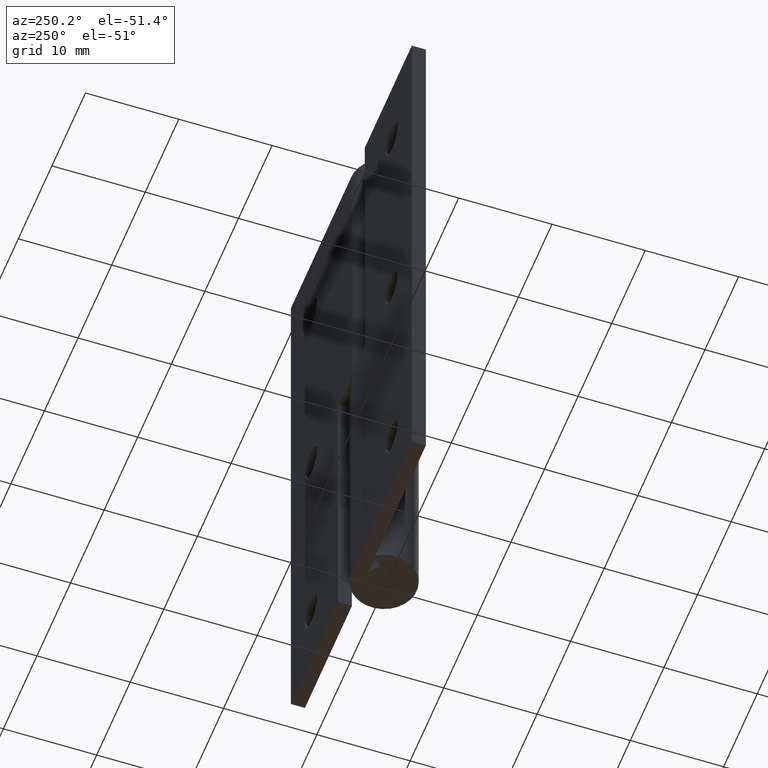
[diagram: clean part render]
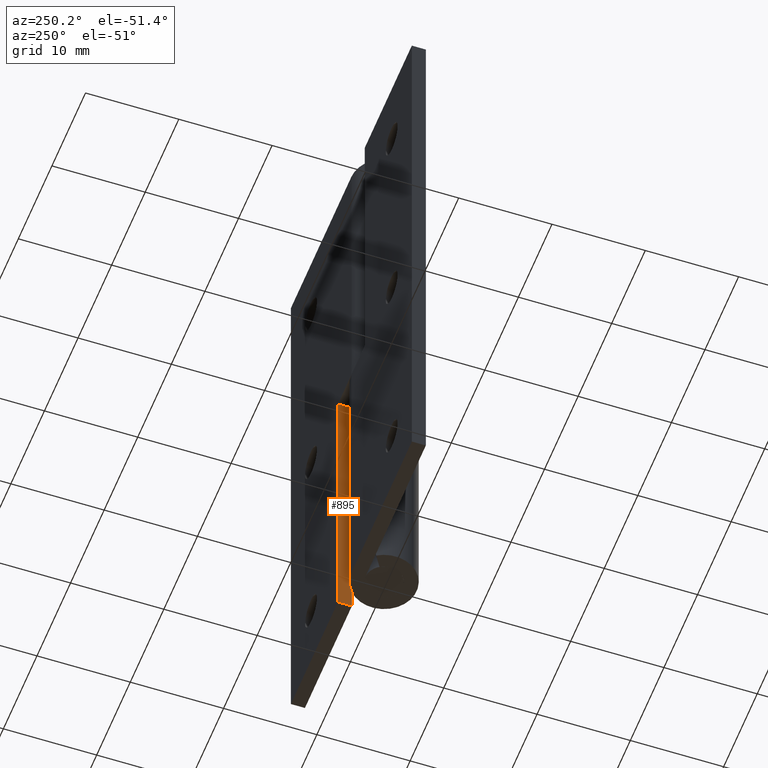
[diagram: same view with one face highlighted and labeled with its STEP entity id]
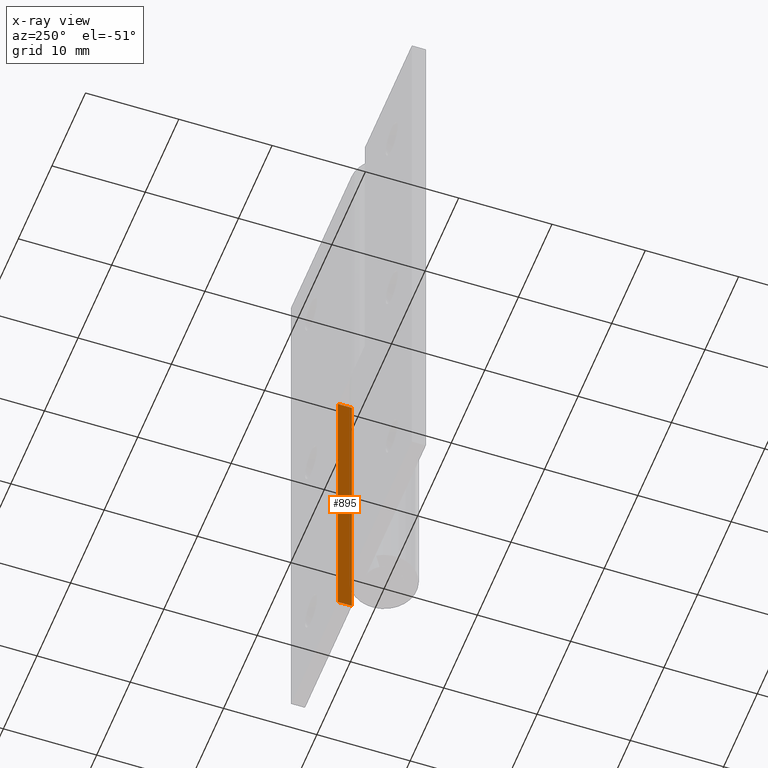
[diagram: x-ray of the same camera — body ghosted, the highlighted face saturated]
A machine part, auxiliary view. The second image highlights one B-rep face of the part: STEP entity #895.
The next image is the same camera in x-ray: the body ghosted, the highlighted face saturated — about 0% of this face is hidden behind the body in this view.
In plain terms, the highlighted face is a freeform B-spline surface patch.
Its self-contained STEP definition (entity closure, byte-faithful):
#860=CARTESIAN_POINT('',(4.0,1.925075002907294,-1.598400337577772));
#861=CARTESIAN_POINT('',(4.0,1.925075002907294,33.598409195884770));
#862=CARTESIAN_POINT('',(4.0,3.574925037325792,-1.598400337577772));
#863=CARTESIAN_POINT('',(4.0,3.574925037325792,33.598409195884770));
#864=B_SPLINE_SURFACE_WITH_KNOTS('',1,1,((#860,#862),(#861,#863)),.UNSPECIFIED.,.F.,.F.,.U.,(2,2),(2,2),(0.0,35.196809533462542),(0.041708334948495,0.958291687403247),.UNSPECIFIED.);
#865=CARTESIAN_POINT('',(4.0,2.0,32.000007999999902));
#866=VERTEX_POINT('',#865);
#867=CARTESIAN_POINT('',(4.0,2.0,0.0));
#868=VERTEX_POINT('',#867);
#869=CARTESIAN_POINT('',(4.0,2.0,32.000007999999902));
#870=CARTESIAN_POINT('',(4.0,2.0,0.0));
#871=QUASI_UNIFORM_CURVE('',1,(#869,#870),.UNSPECIFIED.,.F.,.U.);
#872=EDGE_CURVE('',#866,#868,#871,.T.);
#873=ORIENTED_EDGE('',*,*,#872,.F.);
#874=CARTESIAN_POINT('',(4.0,3.499999999999950,32.000007999999902));
#875=VERTEX_POINT('',#874);
#876=CARTESIAN_POINT('',(4.0,3.499999999999950,32.000007999999902));
#877=CARTESIAN_POINT('',(4.0,2.0,32.000007999999902));
#878=QUASI_UNIFORM_CURVE('',1,(#876,#877),.UNSPECIFIED.,.F.,.U.);
#879=EDGE_CURVE('',#875,#866,#878,.T.);
#880=ORIENTED_EDGE('',*,*,#879,.F.);
#881=CARTESIAN_POINT('',(4.0,3.499999999999950,0.0));
#882=VERTEX_POINT('',#881);
#883=CARTESIAN_POINT('',(4.0,3.499999999999950,32.000007999999902));
#884=CARTESIAN_POINT('',(4.0,3.499999999999950,0.0));
#885=QUASI_UNIFORM_CURVE('',1,(#883,#884),.UNSPECIFIED.,.F.,.U.);
#886=EDGE_CURVE('',#875,#882,#885,.T.);
#887=ORIENTED_EDGE('',*,*,#886,.T.);
#888=CARTESIAN_POINT('',(4.0,3.499999999999950,0.0));
#889=CARTESIAN_POINT('',(4.0,2.0,0.0));
#890=QUASI_UNIFORM_CURVE('',1,(#888,#889),.UNSPECIFIED.,.F.,.U.);
#891=EDGE_CURVE('',#882,#868,#890,.T.);
#892=ORIENTED_EDGE('',*,*,#891,.T.);
#893=EDGE_LOOP('',(#873,#880,#887,#892));
#894=FACE_OUTER_BOUND('',#893,.T.);
#895=ADVANCED_FACE('',(#894),#864,.T.);